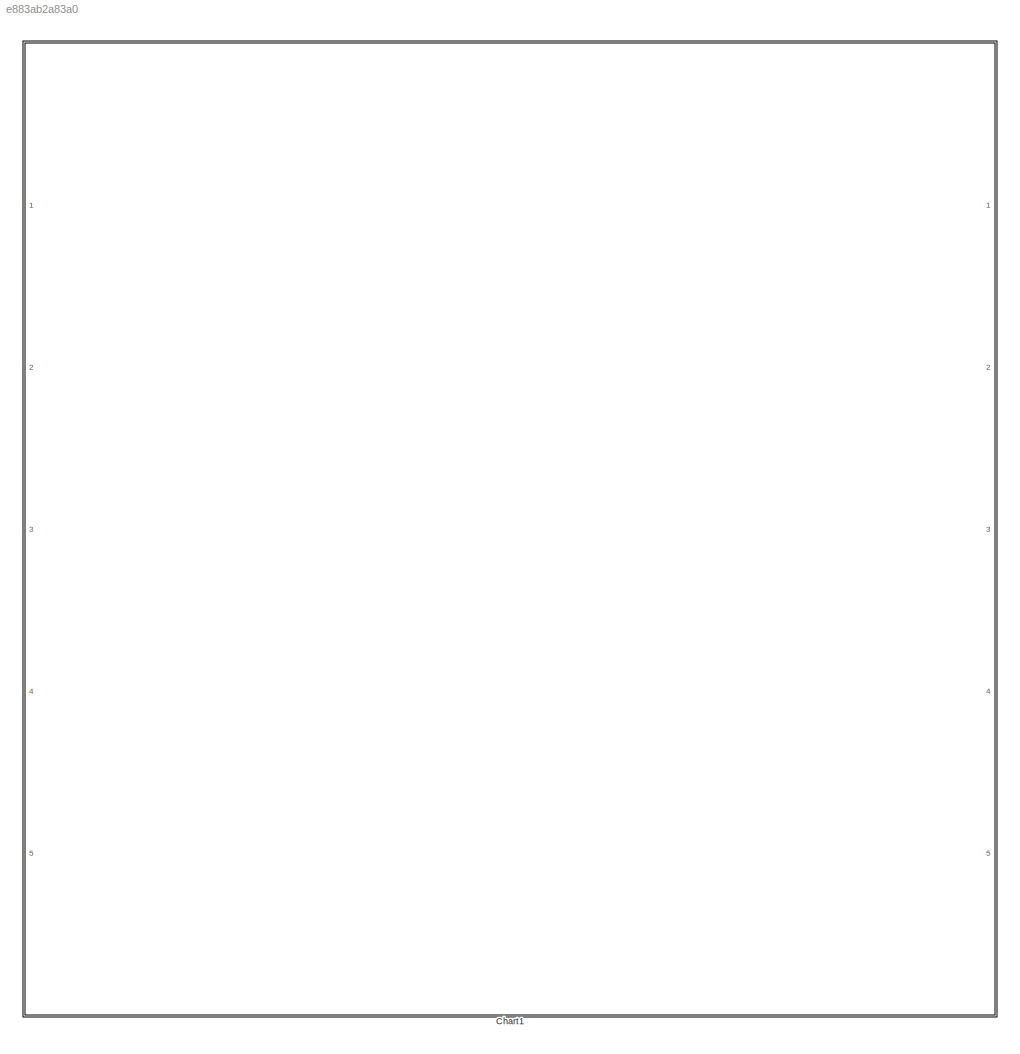
MODEL slx_e883ab2a83a0
KIND model
CONFIG AbsTol = auto
CONFIG EnableMultiTasking = off
CONFIG FixedStep = auto
CONFIG MaxStep = auto
CONFIG MinStep = auto
CONFIG RelTol = 1e-3
CONFIG SampleTimeConstraint = Unconstrained
CONFIG SolverName = VariableStepAuto
CONFIG StartTime = 0.0
CONFIG StopTime = 10.0
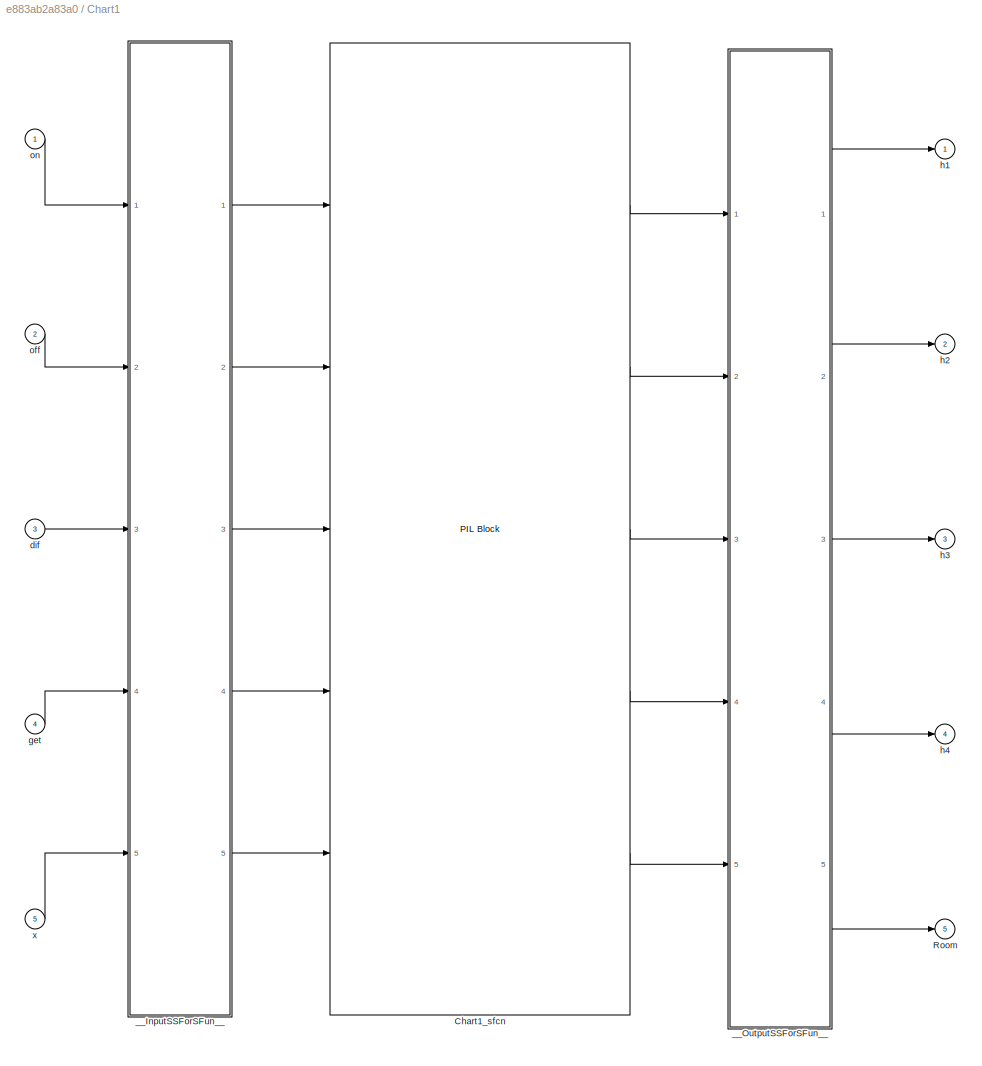
BLOCK [SubSystem] Chart1
  DialogController = pil_create_dialog
  LoadFcn = try\n   if ~strcmp(rtw.pil.getPILVersion, '9.10 (R2021a)_15')\n      set_param(gcb, 'DialogController', '');\n      set_param(gcb, 'DialogControllerArgs', '');\n   end\ncatch e\n      set_param(gcb, 'DialogController', '');\n      set_param(gcb, 'DialogControllerArgs', '');\nend
  Ports = [5, 5]
  RequestExecContextInheritance = off
BLOCK [Reference] Chart1/Chart1_sfcn  REF=pil_lib/PIL Block
  Ports = [5, 5]
  SourceBlock = pil_lib/PIL Block
  SourceProductBaseCode = RT
  SourceType = XILBlock
BLOCK [Outport] Chart1/Room
  Port = 5
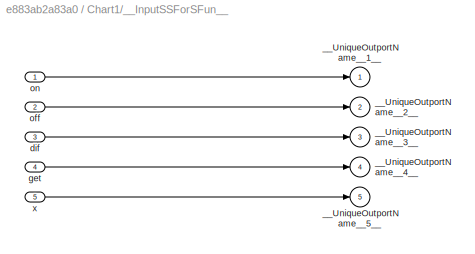
BLOCK [SubSystem] Chart1/__InputSSForSFun__
  PermitHierarchicalResolution = ExplicitOnly
  Ports = [5, 5]
  RequestExecContextInheritance = off
BLOCK [Outport] Chart1/__InputSSForSFun__/__UniqueOutportName__1__
BLOCK [Outport] Chart1/__InputSSForSFun__/__UniqueOutportName__2__
  Port = 2
BLOCK [Outport] Chart1/__InputSSForSFun__/__UniqueOutportName__3__
  Port = 3
BLOCK [Outport] Chart1/__InputSSForSFun__/__UniqueOutportName__4__
  Port = 4
BLOCK [Outport] Chart1/__InputSSForSFun__/__UniqueOutportName__5__
  Port = 5
BLOCK [Inport] Chart1/__InputSSForSFun__/dif
  Port = 3
BLOCK [Inport] Chart1/__InputSSForSFun__/get
  Port = 4
BLOCK [Inport] Chart1/__InputSSForSFun__/off
  Port = 2
BLOCK [Inport] Chart1/__InputSSForSFun__/on
BLOCK [Inport] Chart1/__InputSSForSFun__/x
  Port = 5
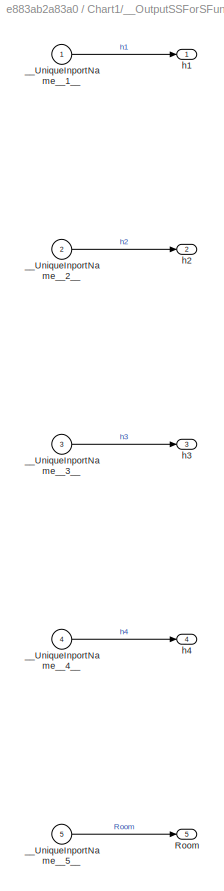
BLOCK [SubSystem] Chart1/__OutputSSForSFun__
  PermitHierarchicalResolution = ExplicitOnly
  Ports = [5, 5]
  RequestExecContextInheritance = off
BLOCK [Outport] Chart1/__OutputSSForSFun__/Room
  Port = 5
BLOCK [Inport] Chart1/__OutputSSForSFun__/__UniqueInportName__1__
BLOCK [Inport] Chart1/__OutputSSForSFun__/__UniqueInportName__2__
  Port = 2
BLOCK [Inport] Chart1/__OutputSSForSFun__/__UniqueInportName__3__
  Port = 3
BLOCK [Inport] Chart1/__OutputSSForSFun__/__UniqueInportName__4__
  Port = 4
BLOCK [Inport] Chart1/__OutputSSForSFun__/__UniqueInportName__5__
  Port = 5
BLOCK [Outport] Chart1/__OutputSSForSFun__/h1
BLOCK [Outport] Chart1/__OutputSSForSFun__/h2
  Port = 2
BLOCK [Outport] Chart1/__OutputSSForSFun__/h3
  Port = 3
BLOCK [Outport] Chart1/__OutputSSForSFun__/h4
  Port = 4
BLOCK [Inport] Chart1/dif
  Port = 3
BLOCK [Inport] Chart1/get
  Port = 4
BLOCK [Outport] Chart1/h1
BLOCK [Outport] Chart1/h2
  Port = 2
BLOCK [Outport] Chart1/h3
  Port = 3
BLOCK [Outport] Chart1/h4
  Port = 4
BLOCK [Inport] Chart1/off
  Port = 2
BLOCK [Inport] Chart1/on
BLOCK [Inport] Chart1/x
  Port = 5
LINE Chart1/Chart1_sfcn:1 -> Chart1/__OutputSSForSFun__:1
LINE Chart1/Chart1_sfcn:2 -> Chart1/__OutputSSForSFun__:2
LINE Chart1/Chart1_sfcn:3 -> Chart1/__OutputSSForSFun__:3
LINE Chart1/Chart1_sfcn:4 -> Chart1/__OutputSSForSFun__:4
LINE Chart1/Chart1_sfcn:5 -> Chart1/__OutputSSForSFun__:5
LINE Chart1/__InputSSForSFun__/dif:1 -> Chart1/__InputSSForSFun__/__UniqueOutportName__3__:1
LINE Chart1/__InputSSForSFun__/get:1 -> Chart1/__InputSSForSFun__/__UniqueOutportName__4__:1
LINE Chart1/__InputSSForSFun__/off:1 -> Chart1/__InputSSForSFun__/__UniqueOutportName__2__:1
LINE Chart1/__InputSSForSFun__/on:1 -> Chart1/__InputSSForSFun__/__UniqueOutportName__1__:1
LINE Chart1/__InputSSForSFun__/x:1 -> Chart1/__InputSSForSFun__/__UniqueOutportName__5__:1
LINE Chart1/__InputSSForSFun__:1 -> Chart1/Chart1_sfcn:1
LINE Chart1/__InputSSForSFun__:2 -> Chart1/Chart1_sfcn:2
LINE Chart1/__InputSSForSFun__:3 -> Chart1/Chart1_sfcn:3
LINE Chart1/__InputSSForSFun__:4 -> Chart1/Chart1_sfcn:4
LINE Chart1/__InputSSForSFun__:5 -> Chart1/Chart1_sfcn:5
LINE Chart1/__OutputSSForSFun__/__UniqueInportName__1__:1 -> Chart1/__OutputSSForSFun__/h1:1
LINE Chart1/__OutputSSForSFun__/__UniqueInportName__2__:1 -> Chart1/__OutputSSForSFun__/h2:1
LINE Chart1/__OutputSSForSFun__/__UniqueInportName__3__:1 -> Chart1/__OutputSSForSFun__/h3:1
LINE Chart1/__OutputSSForSFun__/__UniqueInportName__4__:1 -> Chart1/__OutputSSForSFun__/h4:1
LINE Chart1/__OutputSSForSFun__/__UniqueInportName__5__:1 -> Chart1/__OutputSSForSFun__/Room:1
LINE Chart1/__OutputSSForSFun__:1 -> Chart1/h1:1
LINE Chart1/__OutputSSForSFun__:2 -> Chart1/h2:1
LINE Chart1/__OutputSSForSFun__:3 -> Chart1/h3:1
LINE Chart1/__OutputSSForSFun__:4 -> Chart1/h4:1
LINE Chart1/__OutputSSForSFun__:5 -> Chart1/Room:1
LINE Chart1/dif:1 -> Chart1/__InputSSForSFun__:3
LINE Chart1/get:1 -> Chart1/__InputSSForSFun__:4
LINE Chart1/off:1 -> Chart1/__InputSSForSFun__:2
LINE Chart1/on:1 -> Chart1/__InputSSForSFun__:1
LINE Chart1/x:1 -> Chart1/__InputSSForSFun__:5
